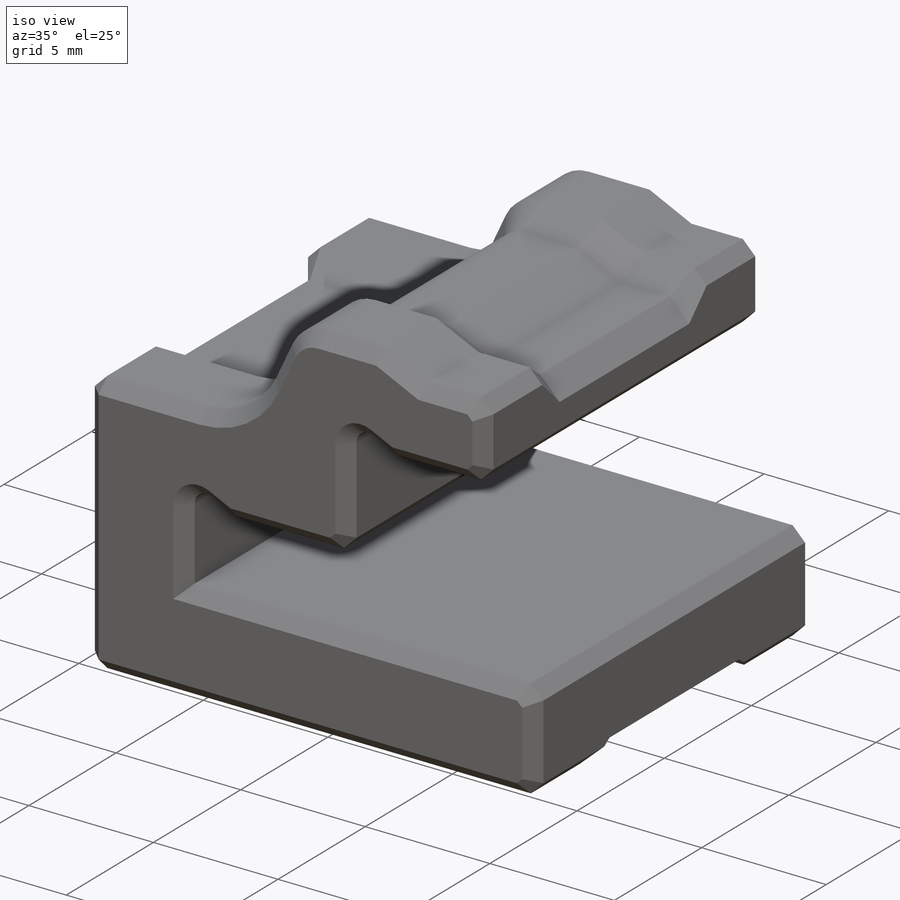
[diagram: iso view]
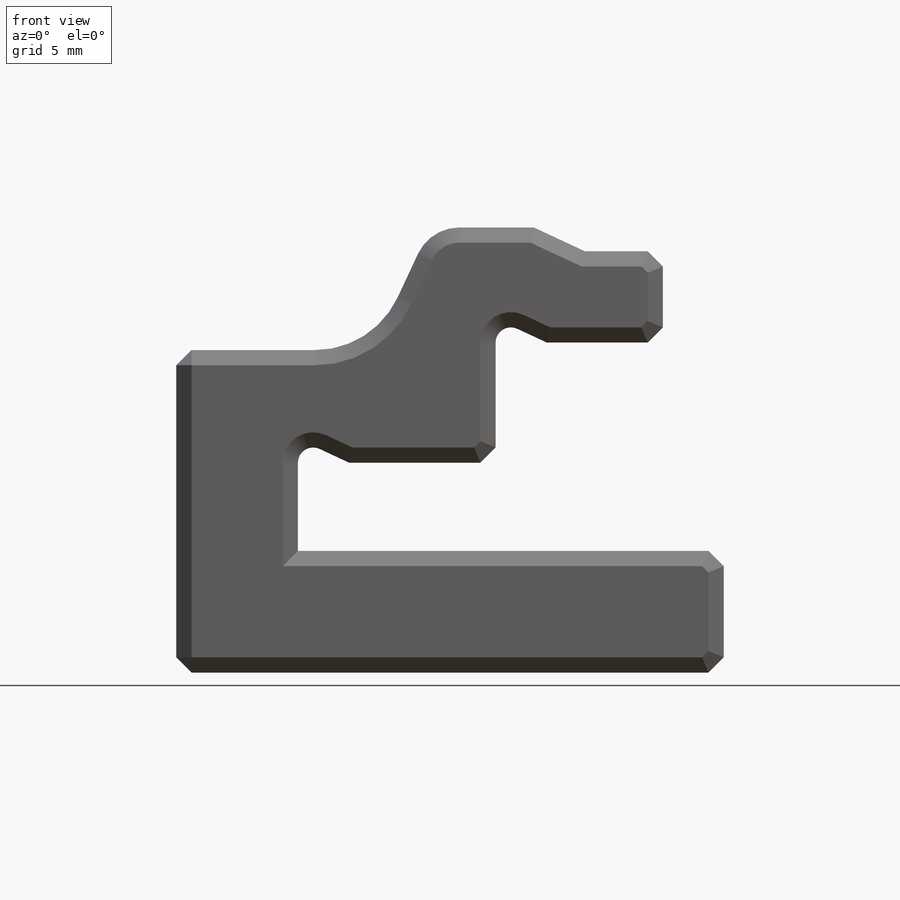
[diagram: front view]
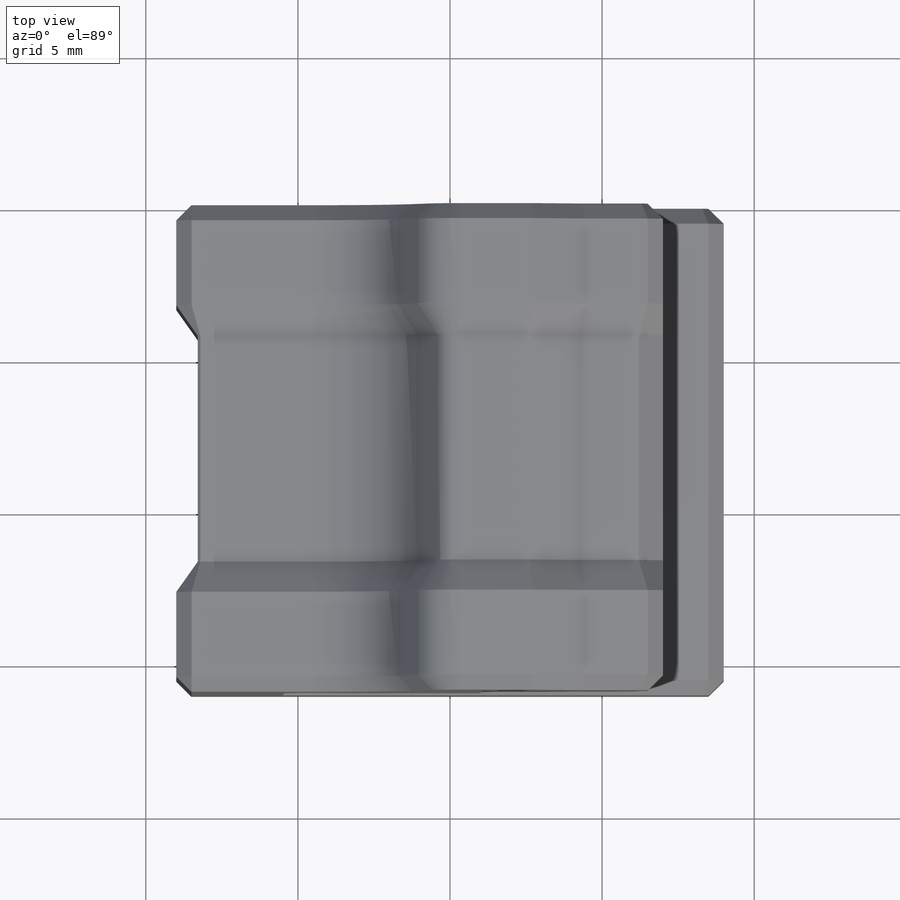
[diagram: top view]
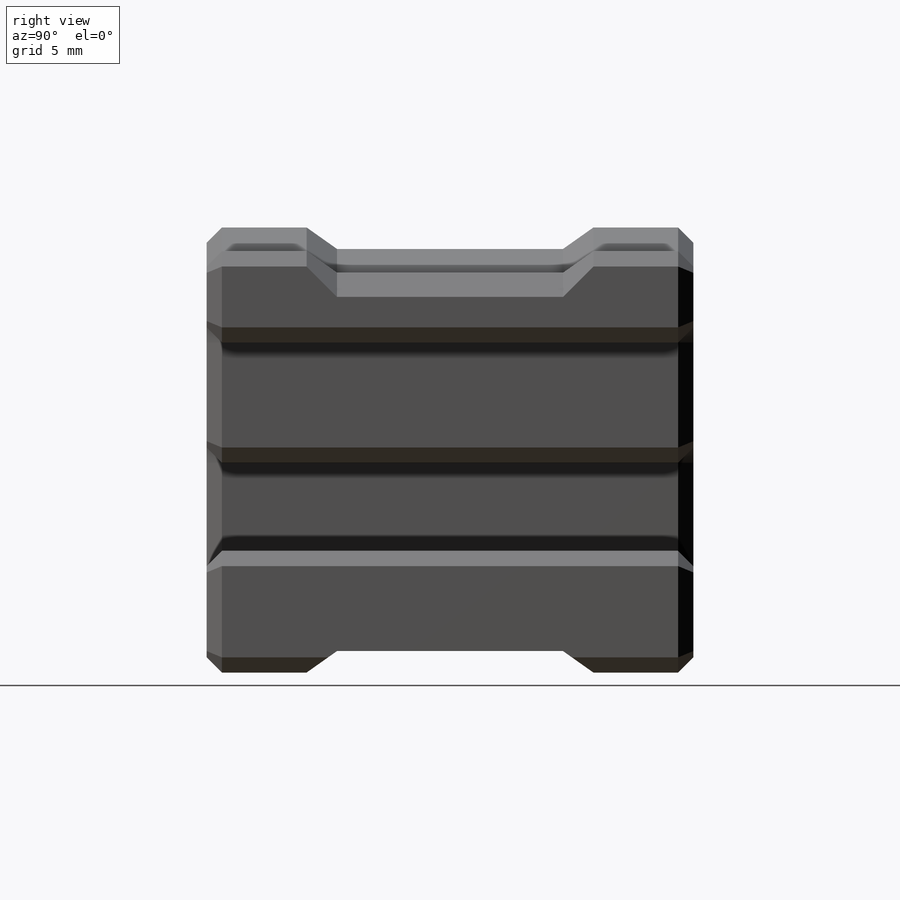
[diagram: right view]
SOLIDWORKS PART (.sldprt)
format: sldprt  version: not decoded by parser v0  size: 349,184 bytes
history: native  units: mm
features: sketch x3, chamfer x2, material x1, extrude x1, plane x1, sweep x1 (+13 scaffold rows collapsed)
feature tree (22):
  scaffold x13  (default folders/planes/origin — collapsed)
  material  "Material <not specified>"
  sketch  "Sketch1"  dims[c1.D5=0.5mm c1.D12=0.5mm c1.D16=3.0mm c1.D17=1.5mm c1.D1=4.0mm c1.D2=4.0mm c1.D3=11.0mm c2.D5=6.0mm c2.D6=3.0mm c2.D3=12.0mm c2.D7=2.0mm c2.D8=6.85mm c2.D9=6.0mm c3.D9=160.0deg c3.D4=18.0mm c4.D9=2.9mm c4.D10=6.5mm c4.D11=3.25mm c4.D4=3.0mm c4.D13=~0.918009mm c5.D13=155.0deg c5.D14=3.25mm c5.D15=4.0mm c5.D4=5.0mm]
  extrude  "Boss-Extrude1"  Depth=16mm
  plane  "Plane2"
  chamfer  "Chamfer1"  Distance=0.5mm Angle=45deg
  chamfer  "Chamfer2"  Distance=0.5mm Angle=45deg
  sketch  "Sketch5"
  sketch  "Sketch2"  dims[c1.D1=12.0mm c1.D2=12.0mm c2.D2=45.0deg c2.D1=6.0mm c2.D3=1.0mm c3.D1=12.0mm c3.D2=~3.213824mm c4.D2=45.0deg]
  sweep  "Cut-Sweep2"
decode coverage: 5 of 7 modeling features carry decoded parameters
note: ~ marks probable driven/reference dimensions
note: suppression state not decoded; provenance and decode notes live in map.json
